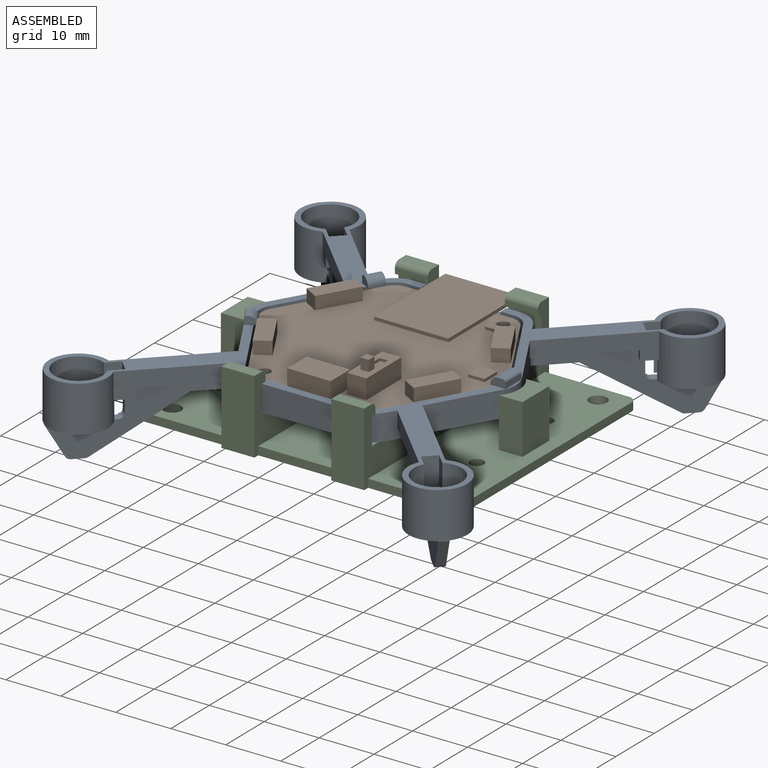
[diagram: assembled view]
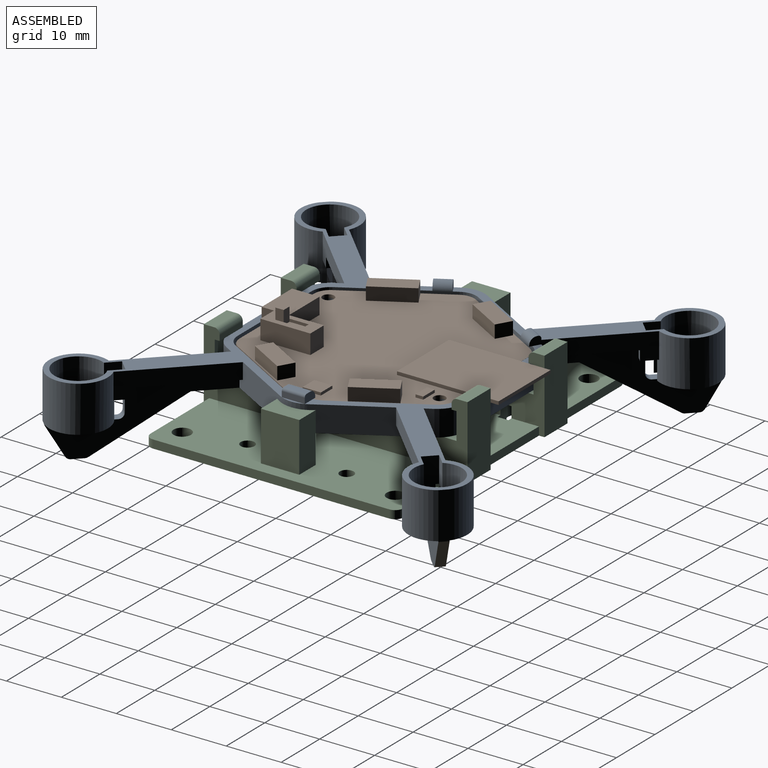
[diagram: assembled view, second angle]
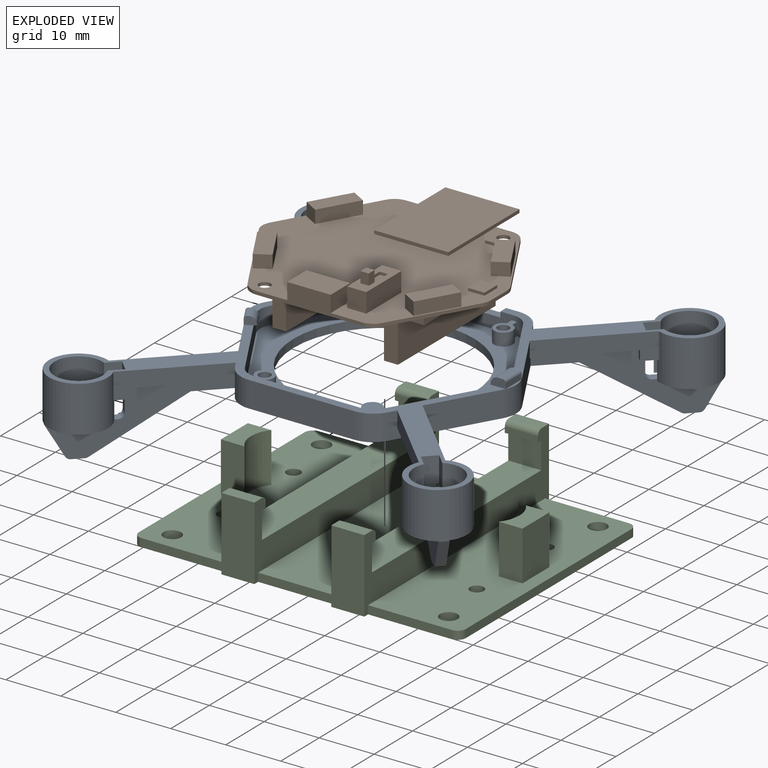
[diagram: exploded view]
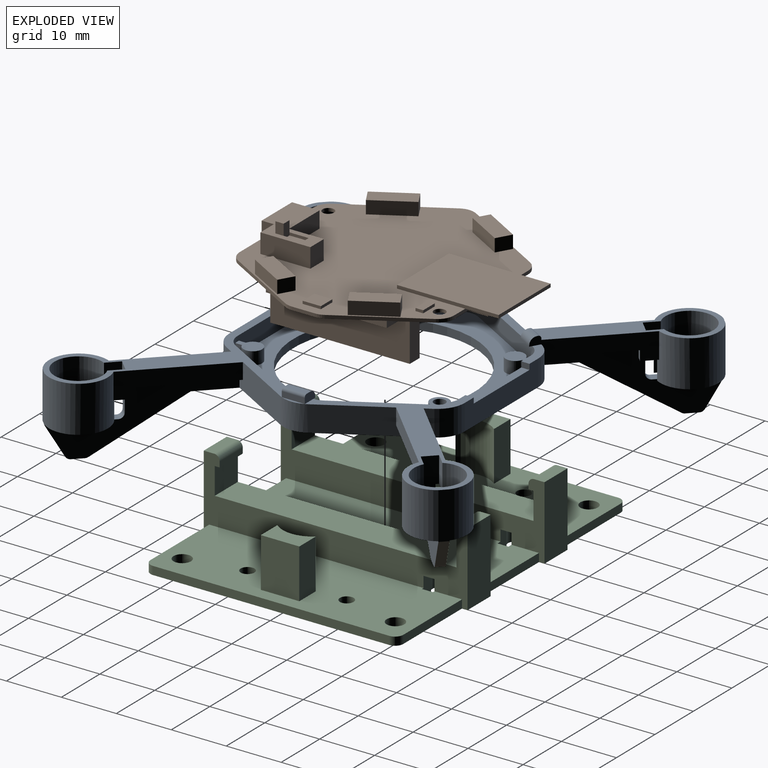
[diagram: exploded view, second angle]
ASSEMBLY  parts=3 mates=2
PART A: 187 faces, bbox 76.1x76.1x15.9 mm
  f0: plane 19.25x3.2mm, normal (0,1,0), area 60.2mm2, adj f2,f8,f69,f72,f78,f81,f117,f119
  f1: cylinder r=1.7mm len=3.4mm, axis (0,0,-1), area 22.2mm2, adj f72,f78,f118,f119
  f2: cylinder r=3.4mm len=3.2mm, axis (0,0,1), area 9.8mm2, adj f0,f8,f68,f72,f81,f116
  f3: plane 6.65x3.25mm, normal (0,0,1), area 10.1mm2, adj f4,f5,f62,f63,f71,f175,f184
  f4: plane 19.25x3.2mm, normal (0,-1,0), area 45.7mm2, adj f3,f7,f47,f63,f72,f75,f83,f113
  f5: plane 19.14x4.7mm, normal (0,1,0), area 75.5mm2, adj f3,f7,f23,f60,f71,f184,f185,f186
  f6: plane 41.4x23.95mm, normal (0,0,1), area 130.3mm2, adj f10,f11,f41,f45,f46,f49,f53,f61
  f7: plane 35.96x30.8mm, normal (0,0,1), area 137.2mm2, adj f4,f5,f13,f14,f39,f47,f58,f59
  f8: plane 76.11x35.96mm, normal (0,0,1), area 289.8mm2, adj f0,f2,f9,f15,f36,f37,f38,f41
  f9: cylinder r=5.35mm len=8.48mm, axis (0,0,1), area 119.1mm2, adj f8,f32,f52,f93,f100,f161
  f10: cylinder r=5.35mm len=8.48mm, axis (0,0,1), area 119.1mm2, adj f6,f28,f50,f88,f107,f160
  f11: cylinder r=5.35mm len=8.48mm, axis (0,0,1), area 119.1mm2, adj f6,f30,f33,f87,f106,f160
  f12: plane 4.18x0.46mm, normal (0,0,1), area 1.3mm2, adj f58,f162
  f13: cylinder r=5.35mm len=8.48mm, axis (0,0,1), area 119.1mm2, adj f7,f22,f85,f95,f110,f158
  f14: cylinder r=5.35mm len=8.48mm, axis (0,0,1), area 119.1mm2, adj f7,f24,f26,f84,f109,f158
  f15: cylinder r=5.35mm len=8.48mm, axis (0,0,1), area 119.1mm2, adj f8,f25,f90,f98,f103,f159
  f16: plane 20.55x20.55mm, normal (0.71,0.71,0), area 112.3mm2, adj f20,f23,f30,f33,f44,f45,f105,f120
  f17: plane 20.55x20.55mm, normal (0.71,-0.71,0), area 112.3mm2, adj f23,f25,f42,f54,f98,f102,f125,f145
  f18: plane 20.55x20.55mm, normal (-0.71,0.71,0), area 112.3mm2, adj f21,f22,f23,f39,f86,f95,f108,f126
  f19: plane 20.55x20.55mm, normal (-0.71,-0.71,0), area 112.3mm2, adj f23,f31,f34,f38,f73,f99,f131,f132
  f20: plane 5.38x3.4mm, normal (-0.61,0.61,-0.5), area 10.6mm2, adj f16,f121,f139,f160
  f21: plane 5.38x3.4mm, normal (0.61,0.61,-0.5), area 10.6mm2, adj f18,f128,f152,f158
  f22: plane 2.86x2.32mm, normal (0,0,-1), area 2.2mm2, adj f13,f18,f85,f108,f110,f126
  f23: plane 48.08x42.8mm, normal (0,0,-1), area 787.8mm2, adj f5,f16,f17,f18,f19,f37,f38,f39
  f24: plane 8.48x8.01mm, normal (0,0,-1), area 13mm2, adj f14,f94,f109,f128
  f25: plane 2.86x2.32mm, normal (0,0,-1), area 2.2mm2, adj f15,f17,f90,f102,f103,f125
  f26: plane 2.86x2.32mm, normal (0,0,-1), area 2.2mm2, adj f14,f84,f108,f109,f127,f128
  f27: plane 8.48x8.01mm, normal (0,0,-1), area 13mm2, adj f96,f97,f104,f124
  f28: plane 2.86x2.32mm, normal (0,0,-1), area 2.2mm2, adj f10,f88,f105,f107,f121,f122
  f29: plane 2.86x2.32mm, normal (0,0,-1), area 2.2mm2, adj f89,f96,f102,f104,f123,f124
  f30: plane 8.48x8.01mm, normal (0,0,-1), area 13mm2, adj f11,f16,f49,f106
  f31: plane 8.48x8.01mm, normal (0,0,-1), area 13mm2, adj f19,f36,f51,f101
  f32: plane 2.86x2.32mm, normal (0,0,-1), area 2.2mm2, adj f9,f93,f99,f100,f129,f130
  f33: plane 2.86x2.32mm, normal (0,0,-1), area 2.2mm2, adj f11,f16,f87,f105,f106,f120
  f34: plane 12.08x11.86mm, normal (0,0,-1), area 18.1mm2, adj f19,f38,f92,f131
  f35: plane 12.62x12.4mm, normal (0,0,-1), area 19mm2, adj f37,f93,f129,f130
  f36: cylinder r=5.35mm len=8.48mm, axis (0,0,1), area 119.1mm2, adj f8,f31,f73,f92,f101,f161
  f37: plane 12.47x7.2mm, normal (0.87,-0.5,0), area 64.2mm2, adj f8,f23,f35,f58,f93,f129
  f38: plane 4.7x2.41mm, normal (0.87,-0.5,0), area 9.6mm2, adj f8,f19,f23,f34,f57,f92
  f39: plane 4.7x2.41mm, normal (0.87,0.5,0), area 9.6mm2, adj f7,f18,f23,f60,f85,f86
  f40: plane 12.62x12.4mm, normal (0,0,-1), area 19mm2, adj f59,f84,f127,f128
  f41: plane 12.47x7.2mm, normal (-0.87,-0.5,0), area 67.2mm2, adj f6,f8,f23,f53,f89,f91,f124,f169
  f42: plane 12.08x11.86mm, normal (0,0,-1), area 18.1mm2, adj f17,f54,f90,f125
  f43: plane 12.62x12.4mm, normal (0,0,-1), area 19mm2, adj f46,f88,f121,f122
  f44: plane 12.08x11.86mm, normal (0,0,-1), area 18.1mm2, adj f16,f45,f87,f120
  f45: plane 5.7x2.6mm, normal (-0.87,0.5,0), area 12.6mm2, adj f6,f16,f23,f44,f71,f87,f173,f175
  f46: plane 12.47x7.2mm, normal (-0.87,0.5,0), area 64.2mm2, adj f6,f23,f43,f53,f88,f121
  f47: cylinder r=3.4mm len=3.2mm, axis (0,0,1), area 9.8mm2, adj f4,f7,f64,f72,f75,f112
  f48: cylinder r=1.7mm len=3.4mm, axis (0,0,-1), area 22.2mm2, adj f72,f75,f112,f113
  f49: cylinder r=4.35mm len=8.7mm, axis (0,0,1), area 205.6mm2, adj f6,f30,f50,f106,f107,f144
  f50: plane 8.48x8.01mm, normal (0,0,-1), area 13mm2, adj f10,f49,f107,f121
  f51: cylinder r=4.35mm len=8.7mm, axis (0,0,1), area 205.6mm2, adj f8,f31,f52,f100,f101,f132
  f52: plane 8.48x8.01mm, normal (0,0,-1), area 13mm2, adj f9,f51,f100,f129
  f53: cylinder r=5mm len=5mm, axis (0,0,1), area 24.6mm2, adj f6,f23,f41,f46
  f54: plane 4.7x2.41mm, normal (-0.87,-0.5,0), area 9.6mm2, adj f8,f17,f23,f42,f55,f90
  f55: cylinder r=5mm len=4.7mm, axis (0,0,1), area 24.6mm2, adj f8,f23,f54,f56
  f56: plane 19.14x4.7mm, normal (0,-1,0), area 90mm2, adj f8,f23,f55,f57
  f57: cylinder r=5mm len=4.7mm, axis (0,0,1), area 24.6mm2, adj f8,f23,f38,f56
  f58: cylinder r=5mm len=5mm, axis (0,0,1), area 24.6mm2, adj f7,f8,f12,f23,f37,f59
  f59: plane 12.47x7.2mm, normal (0.87,0.5,0), area 64.2mm2, adj f7,f23,f40,f58,f84,f128
  f60: cylinder r=5mm len=4.7mm, axis (0,0,1), area 24.6mm2, adj f5,f7,f23,f39
  f61: cylinder r=3.4mm len=3.4mm, axis (0,0,1), area 11.4mm2, adj f6,f62,f70,f72
  f62: plane 16.5x9.53mm, normal (0.87,-0.5,0), area 61mm2, adj f3,f6,f61,f63,f72,f177
  f63: cylinder r=3.4mm len=3.2mm, axis (0,0,1), area 9.8mm2, adj f3,f4,f62,f72,f83,f115
  f64: plane 14.41x8.32mm, normal (-0.87,-0.5,0), area 53.2mm2, adj f7,f47,f65,f72
  f65: cylinder r=3.4mm len=3.2mm, axis (0,0,1), area 5.7mm2, adj f7,f64,f66,f72
  f66: plane 4.18x3.2mm, normal (-1,0,0), area 13.4mm2, adj f65,f67,f72,f167
  f67: cylinder r=3.4mm len=3.2mm, axis (0,0,1), area 5.7mm2, adj f8,f66,f68,f72
  f68: plane 14.41x8.32mm, normal (-0.87,0.5,0), area 53.2mm2, adj f2,f8,f67,f72
  f69: cylinder r=3.4mm len=3.2mm, axis (0,0,1), area 9.8mm2, adj f0,f8,f70,f72,f78,f118
  f70: plane 16.5x9.53mm, normal (0.87,0.5,0), area 61mm2, adj f6,f8,f61,f69,f72,f172
  f71: cylinder r=5mm len=4.7mm, axis (0,0,1), area 24.6mm2, adj f3,f5,f23,f45
  f72: plane 43.9x39.8mm, normal (0,0,1), area 482.4mm2, adj f0,f1,f2,f4,f47,f48,f61,f62
  f73: plane 2.86x2.32mm, normal (0,0,-1), area 2.2mm2, adj f19,f36,f92,f99,f101,f131
  f74: cylinder r=1.05mm len=2.3mm, axis (0,0,-1), area 15.2mm2, adj f75,f76
  f75: plane 4.6x3.4mm, normal (0,0,1), area 6.8mm2, adj f4,f47,f48,f74,f112,f113
  f76: plane 2.1x2.1mm, normal (0,0,1), area 3.5mm2, adj f74
  f77: cylinder r=1.05mm len=2.3mm, axis (0,0,-1), area 15.2mm2, adj f78,f79
  f78: plane 4.6x3.4mm, normal (0,0,1), area 6.8mm2, adj f0,f1,f69,f77,f118,f119
  f79: plane 2.1x2.1mm, normal (0,0,1), area 3.5mm2, adj f77
  f80: cylinder r=1.7mm len=3.4mm, axis (0,0,-1), area 22.2mm2, adj f72,f81,f116,f117
  f81: plane 4.6x3.4mm, normal (0,0,1), area 10.3mm2, adj f0,f2,f80,f116,f117
  f82: cylinder r=1.7mm len=3.4mm, axis (0,0,-1), area 22.2mm2, adj f72,f83,f114,f115
  f83: plane 4.6x3.4mm, normal (0,0,1), area 10.3mm2, adj f4,f63,f82,f114,f115
  f84: plane 13.84x13.84mm, normal (0.71,-0.71,0), area 62mm2, adj f7,f14,f26,f40,f59,f127
  f85: plane 13.09x13.09mm, normal (-0.71,0.71,0), area 58.9mm2, adj f7,f13,f22,f39,f86,f126
  f86: plane 12.08x11.86mm, normal (0,0,-1), area 18.1mm2, adj f18,f39,f85,f126
  f87: plane 13.09x13.09mm, normal (0.71,0.71,0), area 58.9mm2, adj f6,f11,f33,f44,f45,f120
  f88: plane 13.84x13.84mm, normal (-0.71,-0.71,0), area 62mm2, adj f6,f10,f28,f43,f46,f122
  f89: plane 13.84x13.84mm, normal (-0.71,0.71,0), area 62mm2, adj f8,f29,f41,f91,f96,f123
  f90: plane 13.09x13.09mm, normal (0.71,-0.71,0), area 58.9mm2, adj f8,f15,f25,f42,f54,f125
  f91: plane 12.62x12.4mm, normal (0,0,-1), area 19mm2, adj f41,f89,f123,f124
  f92: plane 13.09x13.09mm, normal (-0.71,-0.71,0), area 58.9mm2, adj f8,f34,f36,f38,f73,f131
  f93: plane 13.84x13.84mm, normal (0.71,0.71,0), area 62mm2, adj f8,f9,f32,f35,f37,f130
  f94: cylinder r=4.35mm len=8.7mm, axis (0,0,1), area 205.6mm2, adj f7,f24,f95,f109,f110,f157
  f95: plane 8.48x8.01mm, normal (0,0,-1), area 13mm2, adj f13,f18,f94,f110
  f96: cylinder r=5.35mm len=8.48mm, axis (0,0,1), area 119.1mm2, adj f8,f27,f29,f89,f104,f159
  f97: cylinder r=4.35mm len=8.7mm, axis (0,0,1), area 205.6mm2, adj f8,f27,f98,f103,f104,f145
  f98: plane 8.48x8.01mm, normal (0,0,-1), area 13mm2, adj f15,f17,f97,f103
  f99: plane 7.4x1.98mm, normal (0.71,-0.71,0), area 17.8mm2, adj f8,f19,f32,f73,f100,f101,f129,f134
  f100: plane 8.4x1.93mm, normal (-0.71,-0.71,0), area 16.7mm2, adj f8,f9,f32,f51,f52,f99
  f101: plane 8.4x1.93mm, normal (0.71,0.71,0), area 16.7mm2, adj f8,f31,f36,f51,f73,f99
  f102: plane 7.4x1.98mm, normal (-0.71,-0.71,0), area 17.8mm2, adj f8,f17,f25,f29,f103,f104,f124,f146
  f103: plane 8.4x1.93mm, normal (-0.71,0.71,0), area 16.7mm2, adj f8,f15,f25,f97,f98,f102
  f104: plane 8.4x1.93mm, normal (0.71,-0.71,0), area 16.7mm2, adj f8,f27,f29,f96,f97,f102
  f105: plane 7.4x1.98mm, normal (-0.71,0.71,0), area 17.8mm2, adj f6,f16,f28,f33,f106,f107,f121,f143
  f106: plane 8.4x1.93mm, normal (-0.71,-0.71,0), area 16.7mm2, adj f6,f11,f30,f33,f49,f105
  f107: plane 8.4x1.93mm, normal (0.71,0.71,0), area 16.7mm2, adj f6,f10,f28,f49,f50,f105
  f108: plane 7.4x1.98mm, normal (0.71,0.71,0), area 17.8mm2, adj f7,f18,f22,f26,f109,f110,f128,f156
  f109: plane 8.4x1.93mm, normal (-0.71,0.71,0), area 16.7mm2, adj f7,f14,f24,f26,f94,f108
  f110: plane 8.4x1.93mm, normal (0.71,-0.71,0), area 16.7mm2, adj f7,f13,f22,f94,f95,f108
  f111: cylinder r=16.43mm len=32.86mm, axis (0,0,1), area 154.8mm2, adj f23,f72
  f112: plane 2.3x1.21mm, normal (1,0,0), area 2.8mm2, adj f47,f48,f72,f75
  f113: plane 2.3x1.28mm, normal (-1,0,0), area 2.9mm2, adj f4,f48,f72,f75
  f114: plane 2.3x1.28mm, normal (1,0,0), area 2.9mm2, adj f4,f72,f82,f83
  f115: plane 2.3x1.21mm, normal (-1,0,0), area 2.8mm2, adj f63,f72,f82,f83
  f116: plane 2.3x1.21mm, normal (1,0,0), area 2.8mm2, adj f2,f72,f80,f81
  f117: plane 2.3x1.28mm, normal (-1,0,0), area 2.9mm2, adj f0,f72,f80,f81
  f118: plane 2.3x1.21mm, normal (-1,0,0), area 2.8mm2, adj f1,f69,f72,f78
  f119: plane 2.3x1.28mm, normal (1,0,0), area 2.9mm2, adj f0,f1,f72,f78
  f120: plane 1.8x0.81mm, normal (0.71,-0.71,0), area 2.1mm2, adj f16,f33,f44,f87
  f121: plane 20.87x20.87mm, normal (-0.71,-0.71,0), area 113.1mm2, adj f20,f23,f28,f43,f46,f50,f105,f122
  f122: plane 1.8x0.81mm, normal (0.71,-0.71,0), area 2.1mm2, adj f28,f43,f88,f121
  f123: plane 1.8x0.81mm, normal (0.71,0.71,0), area 2.1mm2, adj f29,f89,f91,f124
  f124: plane 20.87x20.87mm, normal (-0.71,0.71,0), area 113.1mm2, adj f23,f27,f29,f41,f91,f102,f123,f145
  f125: plane 1.8x0.81mm, normal (0.71,0.71,0), area 2.1mm2, adj f17,f25,f42,f90
  f126: plane 1.8x0.81mm, normal (-0.71,-0.71,0), area 2.1mm2, adj f18,f22,f85,f86
  f127: plane 1.8x0.81mm, normal (-0.71,-0.71,0), area 2.1mm2, adj f26,f40,f84,f128
  f128: plane 20.87x20.87mm, normal (0.71,-0.71,0), area 113.1mm2, adj f21,f23,f24,f26,f40,f59,f108,f127
  f129: plane 20.87x20.87mm, normal (0.71,0.71,0), area 113.1mm2, adj f23,f32,f35,f37,f52,f99,f130,f132
  f130: plane 1.8x0.81mm, normal (-0.71,0.71,0), area 2.1mm2, adj f32,f35,f93,f129
  f131: plane 1.8x0.81mm, normal (-0.71,0.71,0), area 2.1mm2, adj f19,f34,f73,f92
  f132: plane 8.36x8.36mm, normal (0,0,1), area 17.3mm2, adj f19,f51,f129,f134
  f133: plane 5.38x3.4mm, normal (0.61,-0.61,-0.5), area 10.6mm2, adj f19,f129,f138,f161
  f134: cylinder r=1mm len=1.91mm, axis (0.71,0.71,0), area 2.7mm2, adj f19,f99,f129,f132
  f135: plane 12.16x12.16mm, normal (-0.37,0.37,-0.85), area 30.9mm2, adj f19,f23,f129,f136
  f136: cylinder r=1mm len=1.57mm, axis (0.71,0.71,0), area 0.9mm2, adj f19,f129,f135,f137
  f137: plane 2.71x2.71mm, normal (0,0,-1), area 3.6mm2, adj f19,f129,f136,f138
  f138: cylinder r=1mm len=1.81mm, axis (0.71,0.71,0), area 1.8mm2, adj f19,f129,f133,f137
  f139: cylinder r=1mm len=1.81mm, axis (0.71,0.71,0), area 1.8mm2, adj f16,f20,f121,f140
  f140: plane 2.71x2.71mm, normal (0,0,-1), area 3.6mm2, adj f16,f121,f139,f141
  f141: cylinder r=1mm len=1.57mm, axis (0.71,0.71,0), area 0.9mm2, adj f16,f121,f140,f142
  f142: plane 12.16x12.16mm, normal (0.37,-0.37,-0.85), area 30.9mm2, adj f16,f23,f121,f141
  f143: cylinder r=1mm len=1.91mm, axis (0.71,0.71,0), area 2.7mm2, adj f16,f105,f121,f144
  f144: plane 8.36x8.36mm, normal (0,0,1), area 17.3mm2, adj f16,f49,f121,f143
  f145: plane 8.36x8.36mm, normal (0,0,1), area 17.3mm2, adj f17,f97,f124,f146
  f146: cylinder r=1mm len=1.91mm, axis (0.71,-0.71,0), area 2.7mm2, adj f17,f102,f124,f145
  f147: plane 12.16x12.16mm, normal (0.37,0.37,-0.85), area 30.9mm2, adj f17,f23,f124,f148
  f148: cylinder r=1mm len=1.57mm, axis (0.71,-0.71,0), area 0.9mm2, adj f17,f124,f147,f149
  f149: plane 2.71x2.71mm, normal (0,0,-1), area 3.6mm2, adj f17,f124,f148,f150
  f150: cylinder r=1mm len=1.81mm, axis (0.71,-0.71,0), area 1.8mm2, adj f17,f124,f149,f151
  f151: plane 5.38x3.4mm, normal (-0.61,-0.61,-0.5), area 10.6mm2, adj f17,f124,f150,f159
  f152: cylinder r=1mm len=1.81mm, axis (0.71,-0.71,0), area 1.8mm2, adj f18,f21,f128,f153
  f153: plane 2.71x2.71mm, normal (0,0,-1), area 3.6mm2, adj f18,f128,f152,f154
  f154: cylinder r=1mm len=1.57mm, axis (0.71,-0.71,0), area 0.9mm2, adj f18,f128,f153,f155
  f155: plane 12.16x12.16mm, normal (-0.37,-0.37,-0.85), area 30.9mm2, adj f18,f23,f128,f154
  f156: cylinder r=1mm len=1.91mm, axis (0.71,-0.71,0), area 2.7mm2, adj f18,f108,f128,f157
  f157: plane 8.36x8.36mm, normal (0,0,1), area 17.3mm2, adj f18,f94,f128,f156
  f158: plane 8.52x1.2mm, normal (0.71,0.71,0), area 14.5mm2, adj f7,f13,f14,f18,f21,f128
  f159: plane 8.52x1.2mm, normal (-0.71,-0.71,0), area 14.5mm2, adj f8,f15,f17,f96,f124,f151
  f160: plane 8.52x1.2mm, normal (-0.71,0.71,0), area 14.5mm2, adj f6,f10,f11,f16,f20,f121
  f161: plane 8.52x1.2mm, normal (0.71,-0.71,0), area 14.5mm2, adj f8,f9,f19,f36,f129,f133
  f162: plane 4.18x1mm, normal (1,0,0), area 4.2mm2, adj f12,f163,f165,f180
  f163: plane 2.73x1.5mm, normal (0,1,0), area 3.7mm2, adj f7,f162,f164,f166,f167,f180,f183
  f164: plane 4.18x0.2mm, normal (-1,0,0), area 0.8mm2, adj f163,f165,f167,f183
  f165: plane 2.73x1.5mm, normal (0,-1,0), area 3.7mm2, adj f8,f162,f164,f166,f167,f180,f183
  f166: plane 4.18x0.93mm, normal (0,0,1), area 3.9mm2, adj f163,f165,f180,f183
  f167: plane 4.18x0.5mm, normal (0,0,-1), area 2.1mm2, adj f66,f163,f164,f165
  f168: plane 2.6x1.5mm, normal (0.87,0.5,0), area 0.6mm2, adj f169,f170,f172,f182
  f169: plane 1.73x1.5mm, normal (-0.5,0.87,0), area 2.6mm2, adj f6,f41,f168,f171,f172,f179,f182
  f170: plane 1.73x1.5mm, normal (0.5,-0.87,0), area 2.6mm2, adj f8,f41,f168,f171,f172,f179,f182
  f171: plane 2.7x1.67mm, normal (0,0,1), area 0.6mm2, adj f169,f170,f179,f182
  f172: plane 2.85x1.93mm, normal (0,0,-1), area 1.5mm2, adj f70,f168,f169,f170
  f173: plane 1.73x1.5mm, normal (-0.5,-0.87,0), area 2.6mm2, adj f6,f45,f174,f176,f177,f178,f181
  f174: plane 2.6x1.5mm, normal (0.87,-0.5,0), area 0.6mm2, adj f173,f175,f177,f181
  f175: plane 1.73x1.5mm, normal (0.5,0.87,0), area 2.6mm2, adj f3,f45,f174,f176,f177,f178,f181
  f176: plane 2.7x1.67mm, normal (0,0,1), area 0.6mm2, adj f173,f175,f178,f181
  f177: plane 2.85x1.93mm, normal (0,0,-1), area 1.5mm2, adj f62,f173,f174,f175
  f178: cylinder r=0.5mm len=2.85mm, axis (0.5,0.87,0), area 2.4mm2, adj f45,f173,f175,f176
  f179: cylinder r=0.5mm len=2.85mm, axis (0.5,-0.87,0), area 2.4mm2, adj f41,f169,f170,f171
  f180: cylinder r=0.5mm len=4.18mm, axis (0,-1,0), area 3.3mm2, adj f162,f163,f165,f166
  f181: cylinder r=1.3mm len=3.25mm, axis (-0.5,-0.87,0), area 6.1mm2, adj f173,f174,f175,f176
  f182: cylinder r=1.3mm len=3.25mm, axis (0.5,-0.87,0), area 6.1mm2, adj f168,f169,f170,f171
  f183: cylinder r=1.3mm len=4.18mm, axis (0,1,0), area 8.5mm2, adj f163,f164,f165,f166
  f184: plane 1.5x1mm, normal (1,0,0), area 1.5mm2, adj f3,f4,f5,f186
  f185: plane 1.5x1mm, normal (-1,0,0), area 1.5mm2, adj f4,f5,f7,f186
  f186: plane 14.5x1.5mm, normal (0,0,1), area 21.7mm2, adj f4,f5,f184,f185
PART B: 93 faces, bbox 43.1x45.1x14.6 mm
  f0: plane 3.5x1.5mm, normal (0,0,1), area 5.3mm2, adj f85,f86,f87,f91
  f1: plane 43.1x39mm, normal (0,0,1), area 963.3mm2, adj f7,f8,f9,f10,f11,f12,f13,f14
  f2: plane 25.4x8.5mm, normal (-1,0,0), area 178.5mm2, adj f6,f23,f24,f25,f36,f38,f39
  f3: plane 25.4x8.5mm, normal (1,0,0), area 178.5mm2, adj f6,f23,f24,f25,f29,f30,f31
  f4: plane 25.4x8.5mm, normal (1,0,0), area 178.5mm2, adj f6,f26,f27,f28,f32,f33,f34
  f5: plane 25.4x8.5mm, normal (-1,0,0), area 178.5mm2, adj f6,f26,f27,f28,f29,f30,f31
  f6: plane 43.1x39mm, normal (0,0,-1), area 633.5mm2, adj f2,f3,f4,f5,f7,f8,f9,f10
  f7: cylinder r=3mm len=3mm, axis (0,0,-1), area 1.9mm2, adj f1,f6,f8,f22
  f8: plane 16.5x9.53mm, normal (-0.87,-0.5,0), area 11.4mm2, adj f1,f6,f7,f9
  f9: cylinder r=3mm len=2.6mm, axis (0,0,-1), area 1.9mm2, adj f1,f6,f8,f10
  f10: plane 19.25x3.6mm, normal (0,-1,0), area 35.3mm2, adj f1,f6,f9,f11,f66,f68,f69
  f11: cylinder r=3mm len=2.6mm, axis (0,0,-1), area 1.9mm2, adj f1,f6,f10,f12
  f12: plane 14.41x8.32mm, normal (0.87,-0.5,0), area 10mm2, adj f1,f6,f11,f13
  f13: cylinder r=3mm len=1.5mm, axis (0,0,-1), area 0.9mm2, adj f1,f6,f12,f14
  f14: plane 4.18x0.6mm, normal (1,0,0), area 2.5mm2, adj f1,f6,f13,f15
  f15: cylinder r=3mm len=1.5mm, axis (0,0,-1), area 0.9mm2, adj f1,f6,f14,f16
  f16: plane 14.41x8.32mm, normal (0.87,0.5,0), area 10mm2, adj f1,f6,f15,f17
  f17: cylinder r=3mm len=2.6mm, axis (0,0,-1), area 1.9mm2, adj f1,f6,f16,f18
  f18: plane 19.25x0.6mm, normal (0,1,0), area 11.6mm2, adj f1,f6,f17,f19,f60
  f19: cylinder r=3mm len=2.6mm, axis (0,0,-1), area 1.9mm2, adj f1,f6,f18,f22
  f20: cylinder r=1.05mm len=2.1mm, axis (0,0,-1), area 4mm2, adj f1,f6
  f21: cylinder r=1.05mm len=2.1mm, axis (0,0,-1), area 4mm2, adj f1,f6
  f22: plane 16.5x9.53mm, normal (-0.87,0.5,0), area 11.4mm2, adj f1,f6,f7,f19
  f23: plane 8.5x2.54mm, normal (0,-1,0), area 21.6mm2, adj f2,f3,f6,f25
  f24: plane 8.5x2.54mm, normal (0,1,0), area 21.6mm2, adj f2,f3,f6,f25
  f25: plane 25.4x2.54mm, normal (0,0,-1), area 64.5mm2, adj f2,f3,f23,f24
  f26: plane 8.5x2.54mm, normal (0,1,0), area 21.6mm2, adj f4,f5,f6,f28
  f27: plane 8.5x2.54mm, normal (0,-1,0), area 21.6mm2, adj f4,f5,f6,f28
  f28: plane 25.4x2.54mm, normal (0,0,-1), area 64.5mm2, adj f4,f5,f26,f27
  f29: plane 22x17.78mm, normal (0,0,-1), area 391.2mm2, adj f3,f5,f30,f31
  f30: plane 17.78x1.7mm, normal (0,1,0), area 30.2mm2, adj f3,f5,f6,f29
  f31: plane 17.78x1.7mm, normal (0,-1,0), area 30.2mm2, adj f3,f5,f6,f29
  f32: plane 22x3.57mm, normal (0,0,-1), area 78.5mm2, adj f4,f33,f34,f35
  f33: plane 3.57x1.7mm, normal (0,1,0), area 6.1mm2, adj f4,f6,f32,f35
  f34: plane 3.57x1.7mm, normal (0,-1,0), area 6.1mm2, adj f4,f6,f32,f35
  f35: plane 22x1.7mm, normal (1,0,0), area 37.4mm2, adj f6,f32,f33,f34
  f36: plane 3.57x1.7mm, normal (0,-1,0), area 6.1mm2, adj f2,f6,f37,f39
  f37: plane 22x1.7mm, normal (-1,0,0), area 37.4mm2, adj f6,f36,f38,f39
  f38: plane 3.57x1.7mm, normal (0,1,0), area 6.1mm2, adj f2,f6,f37,f39
  f39: plane 22x3.57mm, normal (0,0,-1), area 78.5mm2, adj f2,f36,f37,f38
  f40: plane 6.82x3.94mm, normal (0.87,-0.5,0), area 18.5mm2, adj f1,f41,f43,f44
  f41: plane 2.6x2.35mm, normal (0.5,0.87,0), area 7mm2, adj f1,f40,f42,f44
  f42: plane 6.82x3.94mm, normal (-0.87,0.5,0), area 18.5mm2, adj f1,f41,f43,f44
  f43: plane 2.6x2.35mm, normal (-0.5,-0.87,0), area 7mm2, adj f1,f40,f42,f44
  f44: plane 8.32x6.53mm, normal (0,0,1), area 23.6mm2, adj f40,f41,f42,f43
  f45: plane 6.82x3.94mm, normal (0.87,0.5,0), area 18.5mm2, adj f1,f46,f48,f49
  f46: plane 2.6x2.35mm, normal (-0.5,0.87,0), area 7mm2, adj f1,f45,f47,f49
  f47: plane 6.82x3.94mm, normal (-0.87,-0.5,0), area 18.5mm2, adj f1,f46,f48,f49
  f48: plane 2.6x2.35mm, normal (0.5,-0.87,0), area 7mm2, adj f1,f45,f47,f49
  f49: plane 8.32x6.53mm, normal (0,0,1), area 23.6mm2, adj f45,f46,f47,f48
  f50: plane 2.6x2.35mm, normal (-0.5,-0.87,0), area 7mm2, adj f1,f51,f53,f54
  f51: plane 6.82x3.94mm, normal (0.87,-0.5,0), area 18.5mm2, adj f1,f50,f52,f54
  f52: plane 2.6x2.35mm, normal (0.5,0.87,0), area 7mm2, adj f1,f51,f53,f54
  f53: plane 6.82x3.94mm, normal (-0.87,0.5,0), area 18.5mm2, adj f1,f50,f52,f54
  f54: plane 8.32x6.53mm, normal (0,0,1), area 23.6mm2, adj f50,f51,f52,f53
  f55: plane 2.6x2.35mm, normal (0.5,-0.87,0), area 7mm2, adj f1,f56,f58,f59
  f56: plane 6.82x3.94mm, normal (0.87,0.5,0), area 18.5mm2, adj f1,f55,f57,f59
  f57: plane 2.6x2.35mm, normal (-0.5,0.87,0), area 7mm2, adj f1,f56,f58,f59
  f58: plane 6.82x3.94mm, normal (-0.87,-0.5,0), area 18.5mm2, adj f1,f55,f57,f59
  f59: plane 8.32x6.53mm, normal (0,0,1), area 23.6mm2, adj f55,f56,f57,f58
  f60: plane 13.5x6.09mm, normal (0,0,-1), area 82.2mm2, adj f18,f61,f62,f63
  f61: plane 18.5x0.6mm, normal (1,0,0), area 11.1mm2, adj f1,f60,f62,f64,f65
  f62: plane 13.5x0.6mm, normal (0,1,0), area 8.1mm2, adj f60,f61,f63,f65
  f63: plane 18.5x0.6mm, normal (-1,0,0), area 11.1mm2, adj f1,f60,f62,f64,f65
  f64: plane 13.5x0.6mm, normal (0,-1,0), area 8.1mm2, adj f1,f61,f63,f65
  f65: plane 18.5x13.5mm, normal (0,0,1), area 249.8mm2, adj f61,f62,f63,f64
  f66: plane 5x3mm, normal (1,0,0), area 15mm2, adj f1,f10,f67,f69
  f67: plane 7.9x3mm, normal (0,1,0), area 23.7mm2, adj f1,f66,f68,f69
  f68: plane 5x3mm, normal (-1,0,0), area 15mm2, adj f1,f10,f67,f69
  f69: plane 7.9x5mm, normal (0,0,1), area 39.5mm2, adj f10,f66,f67,f68
  f70: plane 1.4x0.5mm, normal (-1,0,0), area 0.7mm2, adj f1,f71,f73,f74
  f71: plane 3x0.5mm, normal (0,-1,0), area 1.5mm2, adj f1,f70,f72,f74
  f72: plane 1.4x0.5mm, normal (1,0,0), area 0.7mm2, adj f1,f71,f73,f74
  f73: plane 3x0.5mm, normal (0,1,0), area 1.5mm2, adj f1,f70,f72,f74
  f74: plane 3x1.4mm, normal (0,0,1), area 4.2mm2, adj f70,f71,f72,f73
  f75: plane 3.31x0.5mm, normal (-1,0,0), area 1.7mm2, adj f1,f76,f78,f79
  f76: plane 3x0.5mm, normal (0,-1,0), area 1.5mm2, adj f1,f75,f77,f79
  f77: plane 3.31x0.5mm, normal (1,0,0), area 1.7mm2, adj f1,f76,f78,f79
  f78: plane 3x0.5mm, normal (0,1,0), area 1.5mm2, adj f1,f75,f77,f79
  f79: plane 3.31x3mm, normal (0,0,1), area 9.9mm2, adj f75,f76,f77,f78
  f80: plane 9.1x3.54mm, normal (-1,0,0), area 32.2mm2, adj f1,f81,f83,f84
  f81: plane 3.54x3.5mm, normal (0,-1,0), area 12.4mm2, adj f1,f80,f82,f84
  f82: plane 9.1x3.54mm, normal (1,0,0), area 32.2mm2, adj f1,f81,f83,f84
  f83: plane 3.54x3.5mm, normal (0,1,0), area 12.4mm2, adj f1,f80,f82,f84
  f84: plane 9.1x3.5mm, normal (0,0,1), area 24.4mm2, adj f80,f81,f82,f83,f85,f86,f87,f88
  f85: plane 3.5x0.5mm, normal (1,0,0), area 1.7mm2, adj f0,f84,f87,f91
  f86: plane 3.5x0.5mm, normal (-1,0,0), area 1.7mm2, adj f0,f84,f87,f91
  f87: plane 1.5x0.5mm, normal (0,-1,0), area 0.7mm2, adj f0,f84,f85,f86
  f88: plane 2x1.5mm, normal (-1,0,0), area 3mm2, adj f84,f89,f91,f92
  f89: plane 2x1.5mm, normal (0,-1,0), area 3mm2, adj f84,f88,f90,f92
  f90: plane 2x1.5mm, normal (1,0,0), area 3mm2, adj f84,f89,f91,f92
  f91: plane 2.5x1.5mm, normal (0,1,0), area 3.8mm2, adj f0,f85,f86,f88,f90,f92
  f92: plane 1.5x1.5mm, normal (0,0,1), area 2.3mm2, adj f88,f89,f90,f91
PART C: 86 faces, bbox 59.5x48x13.4 mm
  f0: plane 48x13.4mm, normal (-1,0,0), area 269.8mm2, adj f4,f5,f10,f12,f13,f34,f35,f36
  f1: plane 48x13.4mm, normal (-1,0,0), area 269.8mm2, adj f3,f5,f8,f9,f23,f38,f39,f40
  f2: plane 46x16.75mm, normal (0,0,1), area 719mm2, adj f6,f11,f14,f16,f17,f20,f24,f25
  f3: plane 46x16.75mm, normal (0,0,1), area 719mm2, adj f1,f8,f15,f18,f19,f21,f22,f23
  f4: plane 46x14mm, normal (0,0,1), area 640.8mm2, adj f0,f7,f10,f13,f71,f72,f73,f78
  f5: plane 59.5x48mm, normal (0,0,-1), area 2668mm2, adj f0,f1,f6,f7,f8,f10,f11,f13
  f6: plane 48x13.4mm, normal (1,0,0), area 269.8mm2, adj f2,f5,f11,f12,f27,f34,f35,f36
  f7: plane 48x13.4mm, normal (1,0,0), area 269.8mm2, adj f4,f5,f9,f10,f13,f38,f39,f40
  f8: plane 15.25x1.5mm, normal (0,-1,0), area 22.9mm2, adj f1,f3,f5,f28
  f9: plane 44x6mm, normal (0,0,1), area 264mm2, adj f1,f7,f38,f40
  f10: plane 14x1.5mm, normal (0,1,0), area 21mm2, adj f0,f4,f5,f7
  f11: plane 15.25x1.5mm, normal (0,1,0), area 22.9mm2, adj f2,f5,f6,f24
  f12: plane 44x6mm, normal (0,0,1), area 264mm2, adj f0,f6,f34,f36
  f13: plane 14x1.5mm, normal (0,-1,0), area 21mm2, adj f0,f4,f5,f7
  f14: cylinder r=1.6mm len=3.2mm, axis (0,0,1), area 15.1mm2, adj f2,f5
  f15: cylinder r=1.6mm len=3.2mm, axis (0,0,1), area 15.1mm2, adj f3,f5
  f16: cylinder r=1.25mm len=2.5mm, axis (0,0,1), area 11.8mm2, adj f2,f5
  f17: cylinder r=1.25mm len=2.5mm, axis (0,0,1), area 11.8mm2, adj f2,f5
  f18: cylinder r=1.25mm len=2.5mm, axis (0,0,1), area 11.8mm2, adj f3,f5
  f19: cylinder r=1.25mm len=2.5mm, axis (0,0,1), area 11.8mm2, adj f3,f5
  f20: cylinder r=1.6mm len=3.2mm, axis (0,0,1), area 15.1mm2, adj f2,f5
  f21: cylinder r=1.6mm len=3.2mm, axis (0,0,1), area 15.1mm2, adj f3,f5
  f22: cylinder r=1.5mm len=1.5mm, axis (0,0,1), area 3.5mm2, adj f3,f5,f23,f29
  f23: plane 15.25x1.5mm, normal (0,1,0), area 22.9mm2, adj f1,f3,f5,f22
  f24: cylinder r=1.5mm len=1.5mm, axis (0,0,1), area 3.5mm2, adj f2,f5,f11,f25
  f25: plane 43x1.5mm, normal (1,0,0), area 64.5mm2, adj f2,f5,f24,f26
  f26: cylinder r=1.5mm len=1.5mm, axis (0,0,1), area 3.5mm2, adj f2,f5,f25,f27
  f27: plane 15.25x1.5mm, normal (0,-1,0), area 22.9mm2, adj f2,f5,f6,f26
  f28: cylinder r=1.5mm len=1.5mm, axis (0,0,1), area 3.5mm2, adj f3,f5,f8,f29
  f29: plane 43x1.5mm, normal (-1,0,0), area 64.5mm2, adj f3,f5,f22,f28
  f30: cylinder r=1mm len=2mm, axis (0,0,1), area 9.4mm2, adj f5,f33
  f31: cylinder r=1mm len=2mm, axis (0,0,1), area 9.4mm2, adj f5,f32
  f32: plane 2x2mm, normal (0,0,-1), area 3.1mm2, adj f31
  f33: plane 2x2mm, normal (0,0,-1), area 3.1mm2, adj f30
  f34: plane 6x4.9mm, normal (0,1,0), area 29.4mm2, adj f0,f6,f12,f50
  f35: plane 13.4x6mm, normal (0,-1,0), area 80.4mm2, adj f0,f5,f6,f49
  f36: plane 6x4.9mm, normal (0,-1,0), area 29.4mm2, adj f0,f6,f12,f42
  f37: plane 13.4x6mm, normal (0,1,0), area 80.4mm2, adj f0,f5,f6,f44
  f38: plane 6x4.9mm, normal (0,-1,0), area 29.4mm2, adj f1,f7,f9,f47
  f39: plane 13.4x6mm, normal (0,1,0), area 80.4mm2, adj f1,f5,f7,f46
  f40: plane 6x4.9mm, normal (0,1,0), area 29.4mm2, adj f1,f7,f9,f51
  f41: plane 13.4x6mm, normal (0,-1,0), area 80.4mm2, adj f1,f5,f7,f53
  f42: plane 6x0.9mm, normal (0,0,-1), area 5.4mm2, adj f0,f6,f36,f43
  f43: plane 6x1mm, normal (0,-1,0), area 6mm2, adj f0,f6,f42,f54
  f44: plane 6x1.9mm, normal (0,0,1), area 11.4mm2, adj f0,f6,f37,f54
  f45: plane 6x1mm, normal (0,-1,0), area 6mm2, adj f1,f7,f47,f57
  f46: plane 6x1.9mm, normal (0,0,1), area 11.4mm2, adj f1,f7,f39,f57
  f47: plane 6x0.9mm, normal (0,0,-1), area 5.4mm2, adj f1,f7,f38,f45
  f48: plane 6x1mm, normal (0,1,0), area 6mm2, adj f0,f6,f50,f56
  f49: plane 6x1.9mm, normal (0,0,1), area 11.4mm2, adj f0,f6,f35,f56
  f50: plane 6x0.9mm, normal (0,0,-1), area 5.4mm2, adj f0,f6,f34,f48
  f51: plane 6x0.9mm, normal (0,0,-1), area 5.4mm2, adj f1,f7,f40,f52
  f52: plane 6x1mm, normal (0,1,0), area 6mm2, adj f1,f7,f51,f55
  f53: plane 6x1.9mm, normal (0,0,1), area 11.4mm2, adj f1,f7,f41,f55
  f54: cylinder r=1mm len=6mm, axis (-1,0,0), area 9.4mm2, adj f0,f6,f43,f44
  f55: cylinder r=1mm len=6mm, axis (1,0,0), area 9.4mm2, adj f1,f7,f52,f53
  f56: cylinder r=1mm len=6mm, axis (1,0,0), area 9.4mm2, adj f0,f6,f48,f49
  f57: cylinder r=1mm len=6mm, axis (-1,0,0), area 9.4mm2, adj f1,f7,f45,f46
  f58: plane 9x4.29mm, normal (0,1,0), area 38.6mm2, adj f3,f59,f61,f62
  f59: plane 9x7mm, normal (-1,0,0), area 63mm2, adj f3,f58,f60,f62
  f60: plane 9x4.29mm, normal (0,-1,0), area 38.6mm2, adj f3,f59,f61,f62
  f61: cylinder r=5.4mm len=9mm, axis (0,0,-1), area 68.5mm2, adj f3,f58,f60,f62
  f62: plane 7x4.29mm, normal (0,0,1), area 23.8mm2, adj f58,f59,f60,f61
  f63: plane 9x4.29mm, normal (0,1,0), area 38.6mm2, adj f2,f64,f66,f67
  f64: cylinder r=5.4mm len=9mm, axis (0,0,-1), area 68.5mm2, adj f2,f63,f65,f67
  f65: plane 9x4.29mm, normal (0,-1,0), area 38.6mm2, adj f2,f64,f66,f67
  f66: plane 9x7mm, normal (1,0,0), area 63mm2, adj f2,f63,f65,f67
  f67: plane 7x4.29mm, normal (0,0,1), area 23.8mm2, adj f63,f64,f65,f66
  f68: plane 6x3.2mm, normal (0,0,-1), area 14.1mm2, adj f1,f7,f72,f73,f74,f75,f76,f77
  f69: plane 6x3.2mm, normal (0,0,-1), area 14.1mm2, adj f0,f6,f80,f81,f82,f83,f84,f85
  f70: plane 2x1.5mm, normal (1,0,0), area 3mm2, adj f3,f5,f75,f76
  f71: plane 2x1.5mm, normal (-1,0,0), area 3mm2, adj f4,f5,f72,f73
  f72: plane 3.5x2.35mm, normal (0,-1,0), area 6.6mm2, adj f4,f5,f7,f68,f71,f77
  f73: plane 3.5x2.35mm, normal (0,1,0), area 6.6mm2, adj f4,f5,f7,f68,f71,f74
  f74: cylinder r=1.6mm len=3.5mm, axis (0,0,-1), area 10mm2, adj f5,f68,f73,f75
  f75: plane 3.5x2.35mm, normal (0,1,0), area 7.4mm2, adj f1,f3,f5,f68,f70,f74
  f76: plane 3.5x2.35mm, normal (0,-1,0), area 7.4mm2, adj f1,f3,f5,f68,f70,f77
  f77: cylinder r=1.6mm len=3.5mm, axis (0,0,-1), area 10mm2, adj f5,f68,f72,f76
  f78: plane 2x1.5mm, normal (1,0,0), area 3mm2, adj f4,f5,f82,f85
  f79: plane 2x1.5mm, normal (-1,0,0), area 3mm2, adj f2,f5,f80,f81
  f80: plane 3.5x2.35mm, normal (0,-1,0), area 7.4mm2, adj f2,f5,f6,f69,f79,f83
  f81: plane 3.5x2.35mm, normal (0,1,0), area 7.4mm2, adj f2,f5,f6,f69,f79,f84
  f82: plane 3.5x2.35mm, normal (0,-1,0), area 6.6mm2, adj f0,f4,f5,f69,f78,f83
  f83: cylinder r=1.6mm len=3.5mm, axis (0,0,-1), area 10mm2, adj f5,f69,f80,f82
  f84: cylinder r=1.6mm len=3.5mm, axis (0,0,-1), area 10mm2, adj f5,f69,f81,f85
  f85: plane 3.5x2.35mm, normal (0,1,0), area 6.6mm2, adj f0,f4,f5,f69,f78,f84
PLACE A t=(0,-0.3,-2.7)mm
PLACE B t=(0,-0.3,-2.2)mm
PLACE C at identity
MATE fastened B.f21 <-> A.f1  axis (0,0,-1) through (-9.81,-17.3,-2.2)mm
MATE fastened A.f23 <-> C.f9  axis (0,0,-1) through (0,-21.7,-6)mm
